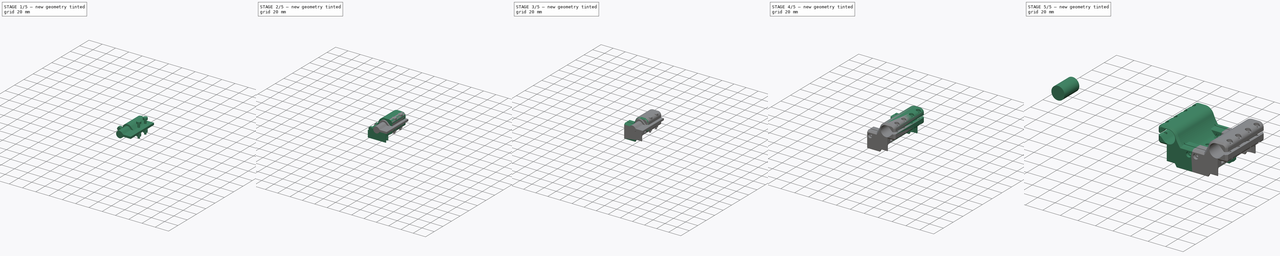
[diagram: build sequence overview — one tinted view per stage of 5, left to right]
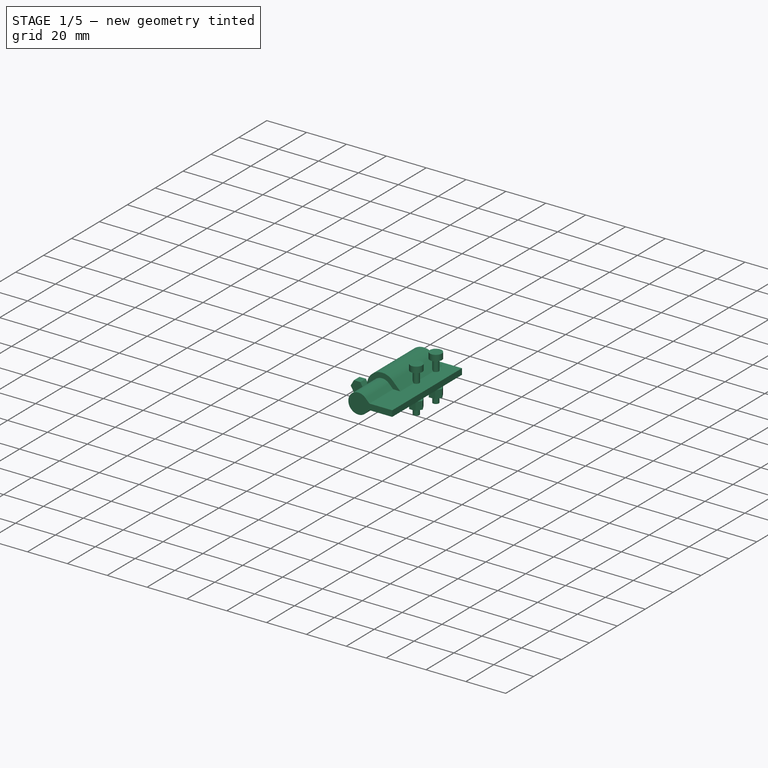
[diagram: stage 1 of 5 — iso view after this stage's code; geometry added in this stage tinted green]
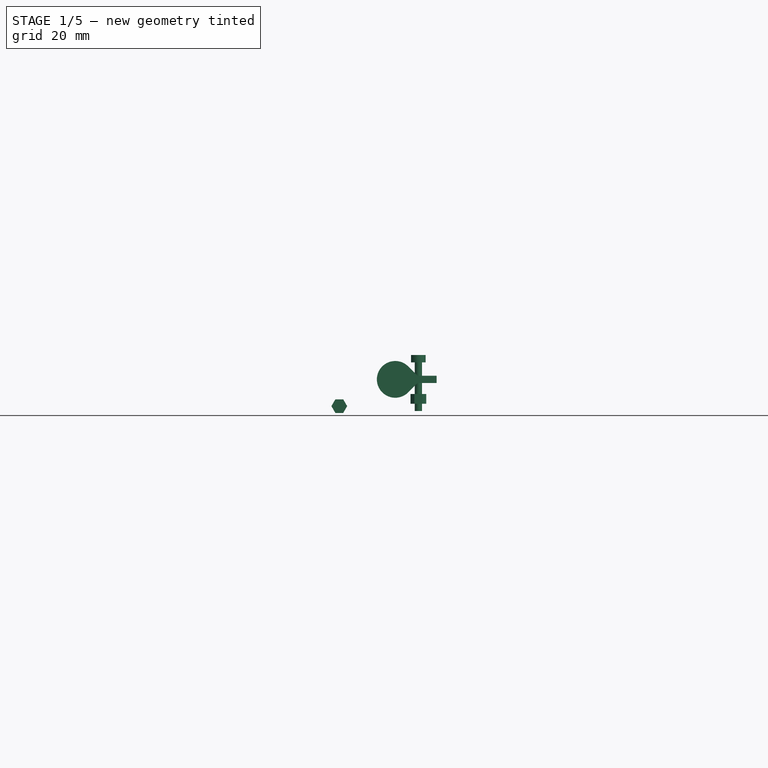
[diagram: stage 1 of 5 — front view after this stage's code; geometry added in this stage tinted green]
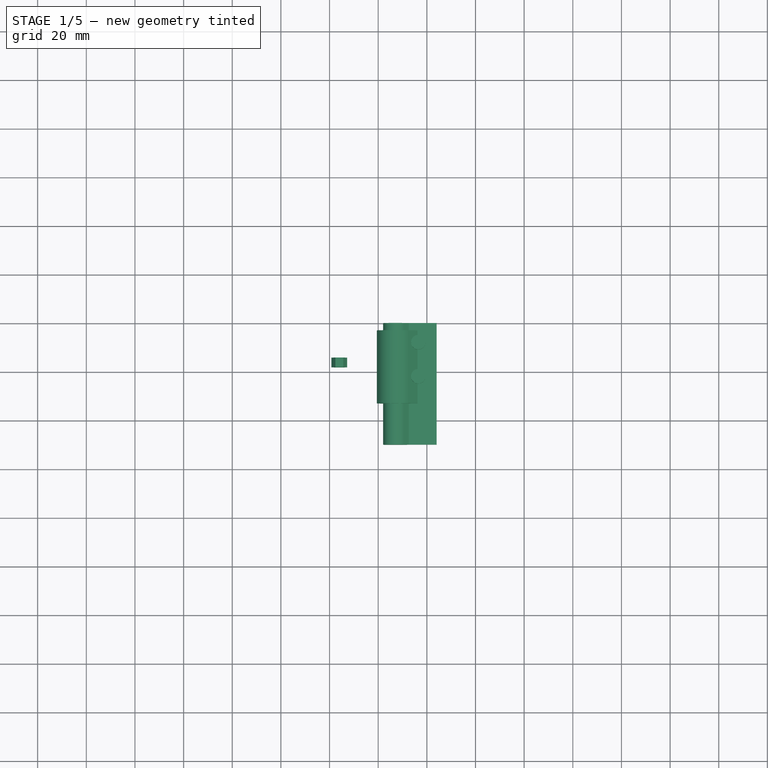
[diagram: stage 1 of 5 — top view after this stage's code; geometry added in this stage tinted green]
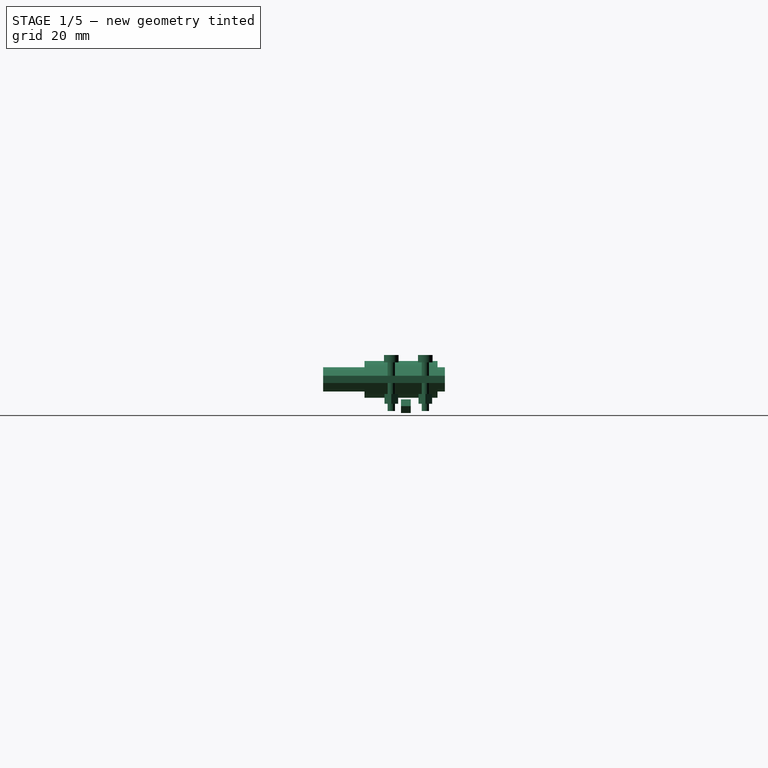
[diagram: stage 1 of 5 — right view after this stage's code; geometry added in this stage tinted green]
FCSTD DOCUMENT  (FreeCAD 0.16RUnknown)
Label: YCarriage
License: All rights reserved
LicenseURL: http://en.wikipedia.org/wiki/All_rights_reserved
objects: Part::Feature×25, Part::FeaturePython×15, Sketcher::SketchObject×14, PartDesign::Pad×8, Part::Cut×7, Part::MultiFuse×6, App::DocumentObjectGroup×5, Part::Mirroring×4, Part::Fillet×4, Part::Chamfer×3, Part::Extrusion×3, Part::Offset×2, PartDesign::Pocket×2, Part::Compound×1, Part::Box×1, PartDesign::Revolution×1, Spreadsheet::Sheet×1
note: 107 computed .brp shape members not serialized (recipe doc carries the construction recipe); baked Part::Feature solids carry a one-line shape summary decoded from their .brp

FEATURE [Sketcher::SketchObject] Sketch022  label="DIN912 M3"
  sketch-geometry (6):
    g0: LineSegment StartX=0 StartY=3 StartZ=0 EndX=3 EndY=3 EndZ=0
    g1: LineSegment StartX=3 StartY=3 StartZ=0 EndX=3 EndY=0 EndZ=0
    g2: LineSegment StartX=3 StartY=0 StartZ=0 EndX=1.5 EndY=0 EndZ=0
    g3: LineSegment StartX=1.5 StartY=0 StartZ=0 EndX=1.5 EndY=-20 EndZ=0
    g4: LineSegment StartX=1.5 StartY=-20 StartZ=0 EndX=0 EndY=-20 EndZ=0
    g5: LineSegment StartX=0 StartY=-20 StartZ=0 EndX=0 EndY=3 EndZ=0
  constraints (18):
    c: Coincident(g0,g1)
    c: Coincident(g1,g2)
    c: Coincident(g2,g3)
    c: Coincident(g3,g4)
    c: Coincident(g4,g5)
    c: Coincident(g5,g0)
    c: Horizontal(g0)
    c: Horizontal(g2)
    c: Horizontal(g4)
    c: Vertical(g5)
    c: Vertical(g3)
    c: Vertical(g1)
    c: PointOnObject(g2,g-1)
    c: PointOnObject(g0,g-2)
    c: DistanceX(g4,g4) = 1.5
    c: DistanceX(g0,g0) = 3
    c: DistanceY(g1,g1) = 3
    c: DistanceY(g3,g3) = 20
FEATURE [PartDesign::Revolution] Revolution  label="DIN912 M3001"
  Angle = 360
  Axis = (0,1,0)
  Base = (0,0,0)
  ReferenceAxis = -> Sketch022 [V_Axis]
  Reversed = true
  Sketch = -> Sketch022
FEATURE [Sketcher::SketchObject] Sketch023  label="M3 Nut"
  expr: Constraints[19] = 5.5 + pars.NutWidthClearmm
  sketch-geometry (7):
    g0: LineSegment StartX=1.61658 StartY=-2.8 StartZ=0 EndX=3.23316 EndY=-2e-12 EndZ=0
    g1: LineSegment StartX=3.23316 StartY=-2e-12 StartZ=0 EndX=1.61658 EndY=2.8 EndZ=0
    g2: LineSegment StartX=1.61658 StartY=2.8 StartZ=0 EndX=-1.61658 EndY=2.8 EndZ=0
    g3: LineSegment StartX=-1.61658 StartY=2.8 StartZ=0 EndX=-3.23316 EndY=-2e-12 EndZ=0
    g4: LineSegment StartX=-3.23316 StartY=-2e-12 StartZ=0 EndX=-1.61658 EndY=-2.8 EndZ=0
    g5: LineSegment StartX=-1.61658 StartY=-2.8 StartZ=0 EndX=1.61658 EndY=-2.8 EndZ=0
    g6: Circle [constr] CenterX=0 CenterY=0 CenterZ=0 NormalX=0 NormalY=0 NormalZ=1 Radius=3.23316
  constraints (16):
    c: Coincident(g0,g1)
    c: Coincident(g1,g2)
    c: Coincident(g2,g3)
    c: Coincident(g3,g4)
    c: Coincident(g4,g5)
    c: Coincident(g5,g0)
    c: Equal(g0, g1-g5) x5
    c: PointOnObject(g0,g6)
    c: PointOnObject(g1,g6)
    c: PointOnObject(g2,g6)
    c: PointOnObject(g3,g6)
    c: PointOnObject(g4,g6)
    c: PointOnObject(g5,g6)
    c: Coincident(g6,g-1)
    c: Horizontal(g5)
    c: DistanceY(g0,g1) = 5.6
FEATURE [PartDesign::Pad] Pad007  label="M3 Nut001"
  Length = 4
  Length2 = 100
  Sketch = -> Sketch023
  Type = 0
  expr: Length = 4
FEATURE [Spreadsheet::Sheet] Spreadsheet  label="pars"
  cells = A1=Bolts and Nuts; B1=Value; D1=Components; E1=Value; A2=Thread Tight Tolerance (Radius, ratio); B2(ThrTighRatio)=0.96; D2=Tight Cilinder Tolerances (Radius, mm); E2(CilTight)=0.1; A3=Thread Tight Tolerance (Radius, mm); B3(ThrTightmm)=0.1; D3=Loose Cilinder Tolerances (Radius, mm); E3(CilLoose)=0.1; A5=Nut Slot Width Clearance (mm); B5(NutWidthClearmm)=0.1; A6=Nut Slot Thickess Clearance (mm); B6(NutThickClearmm)=0.1; A13=Particular parameters; B13=Value; A14=Bearing Adjustment Slits; B14(BearSlits)=3
FEATURE [Part::FeaturePython] Clone022003003008002009024020004  label="Clone of M3 Nut001"  # Draft clone (typed FeaturePython)
  Objects = -> [Pad007]
  Placement = pos=(4,-18,9) rot=(-1,0,0;1.5708rad)
  Scale = (1,1,1)
FEATURE [Sketcher::SketchObject] Sketch024  label="YRodLane001"
  expr: Constraints[15] = pars.BearSlits
  sketch-geometry (6):
    g0: ArcOfCircle CenterX=0 CenterY=0 CenterZ=0 NormalX=0 NormalY=0 NormalZ=1 Radius=5 StartAngle=2.35619 EndAngle=7.06858
    g1: LineSegment StartX=-3.53553 StartY=3.53553 StartZ=0 EndX=-1.5 EndY=5.57107 EndZ=0
    g2: LineSegment StartX=1.5 StartY=5.57107 StartZ=0 EndX=3.53553 EndY=3.53553 EndZ=0
    g3: LineSegment StartX=-1.5 StartY=5.57107 StartZ=0 EndX=-1.5 EndY=17 EndZ=0
    g4: LineSegment StartX=-1.5 StartY=17 StartZ=0 EndX=1.5 EndY=17 EndZ=0
    g5: LineSegment StartX=1.5 StartY=17 StartZ=0 EndX=1.5 EndY=5.57107 EndZ=0
  constraints (17):
    c: Coincident(g2,g0)
    c: Coincident(g1,g0)
    c: Tangent(g2,g0)
    c: Tangent(g1,g0)
    c: Perpendicular(g2,g1)
    c: Coincident(g0,g-1)
    c: Radius(g0) = 5
    c: Coincident(g3,g4)
    c: Coincident(g4,g5)
    c: Coincident(g3,g1)
    c: Coincident(g5,g2)
    c: Vertical(g5)
    c: Vertical(g3)
    c: Horizontal(g4)
    c: Symmetric(g1,g2,g-2)
    c: DistanceX(g4,g4) = 3
    c: DistanceY(g4) = 17
FEATURE [PartDesign::Pad] Pad008  label="YRodLane002"
  Length = 50
  Length2 = 100
  Sketch = -> Sketch024
  Type = 0
FEATURE [Sketcher::SketchObject] Sketch025  label="BearingSlot"
  expr: Constraints[15] = pars.BearSlits
  sketch-geometry (6):
    g0: ArcOfCircle CenterX=0 CenterY=0 CenterZ=0 NormalX=0 NormalY=0 NormalZ=1 Radius=7.55 StartAngle=2.3562 EndAngle=7.06858
    g1: LineSegment StartX=-5.33868 StartY=5.33863 StartZ=0 EndX=-1.5 EndY=9.17731 EndZ=0
    g2: LineSegment StartX=1.5 StartY=9.17731 StartZ=0 EndX=5.33868 EndY=5.33863 EndZ=0
    g3: LineSegment StartX=-1.5 StartY=9.17731 StartZ=0 EndX=-1.5 EndY=17 EndZ=0
    g4: LineSegment StartX=-1.5 StartY=17 StartZ=0 EndX=1.5 EndY=17 EndZ=0
    g5: LineSegment StartX=1.5 StartY=17 StartZ=0 EndX=1.5 EndY=9.17731 EndZ=0
  constraints (17):
    c: Coincident(g2,g0)
    c: Coincident(g1,g0)
    c: Tangent(g2,g0)
    c: Tangent(g1,g0)
    c: Perpendicular(g2,g1)
    c: Coincident(g0,g-1)
    c: Radius(g0) = 7.55
    c: Coincident(g3,g4)
    c: Coincident(g4,g5)
    c: Coincident(g3,g1)
    c: Coincident(g5,g2)
    c: Vertical(g5)
    c: Vertical(g3)
    c: Horizontal(g4)
    c: Symmetric(g1,g2,g-2)
    c: DistanceX(g4,g4) = 3
    c: DistanceY(g4) = 17
FEATURE [Part::Extrusion] Extrude004  label="BearingSlot001"
  Base = -> Sketch025
  Dir = (0,0,30)
  Placement = pos=(0,0,3) rot=(0,0,1;0rad)
  Solid = true
FEATURE [Part::MultiFuse] Fusion002  label="YAxisCavity"
  Shapes = -> [Pad008,Extrude004]
FEATURE [App::DocumentObjectGroup] Group001  label="Components_src"
  Group = -> [Fusion,Extrude001,Part__Mirroring,Revolution,Pad007,Sketch025,Fusion002]
FEATURE [Part::FeaturePython] Clone022003003008002009024020005  label="Clone of YAxisCavity"  # Draft clone (typed FeaturePython)
  Objects = -> [Fusion002]
  Placement = pos=(27,0,20) rot=(0.57735,0.57735,-0.57735;2.0944rad)
  Scale = (1,1,1)
FEATURE [Part::FeaturePython] Clone022003003008002009024020006  label="Clone of DIN912 M3001"  # Draft clone (typed FeaturePython)
  Objects = -> [Revolution]
  Placement = pos=(37,-22,27) rot=(1,0,0;1.5708rad)
  Scale = (1,1,1)
FEATURE [Part::FeaturePython] Clone022003003008002009024020007  label="Clone of M3 Nut002"  # Draft clone (typed FeaturePython)
  Objects = -> [Pad007]
  Placement = pos=(37,-22,10) rot=(0,0,1;0rad)
  Scale = (1,1,1)
FEATURE [Part::MultiFuse] Fusion003  label="BearingFix"
  Placement = pos=(-0.5,0,0) rot=(0,0,1;0rad)
  Shapes = -> [Clone022003003008002009024020006,Clone022003003008002009024020007]
FEATURE [Part::FeaturePython] Array  label="BearingFixes"  # Draft array (typed FeaturePython)
  Angle = 360
  ArrayType = 0
  Axis = (0,0,1)
  Base = -> Fusion003
  Center = (0,0,0)
  Fuse = false
  IntervalAxis = (0,0,0)
  IntervalX = (1,0,0)
  IntervalY = (0,14,0)
  IntervalZ = (0,0,0)
  NumberPolar = 1
  NumberX = 1
  NumberY = 2
  NumberZ = 1
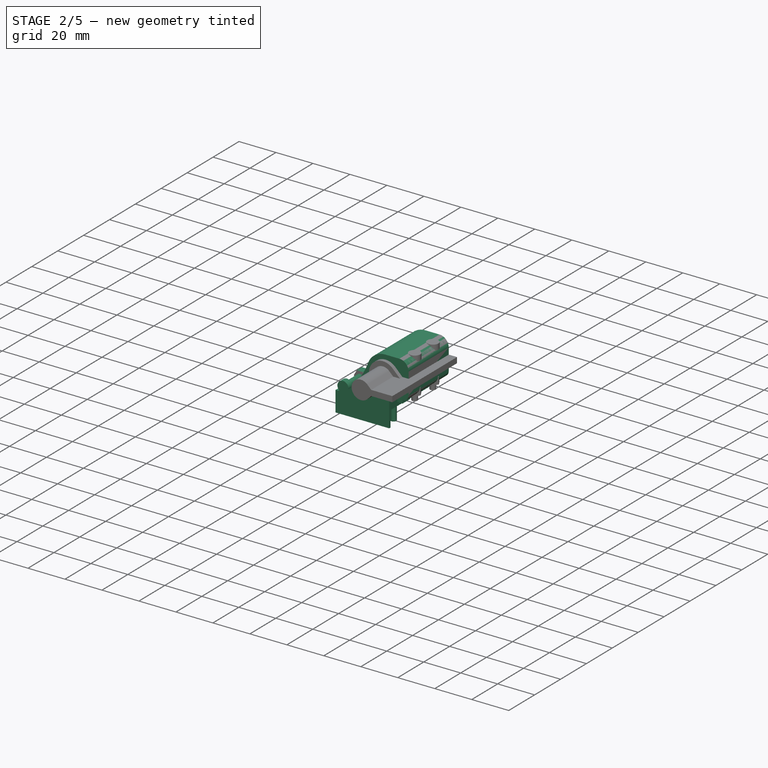
[diagram: stage 2 of 5 — iso view after this stage's code; geometry added in this stage tinted green]
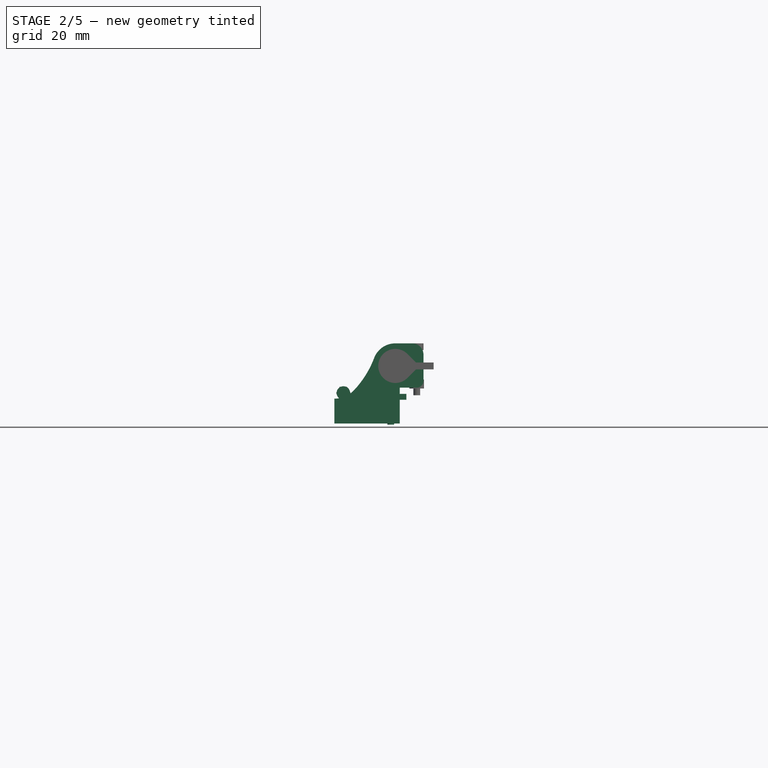
[diagram: stage 2 of 5 — front view after this stage's code; geometry added in this stage tinted green]
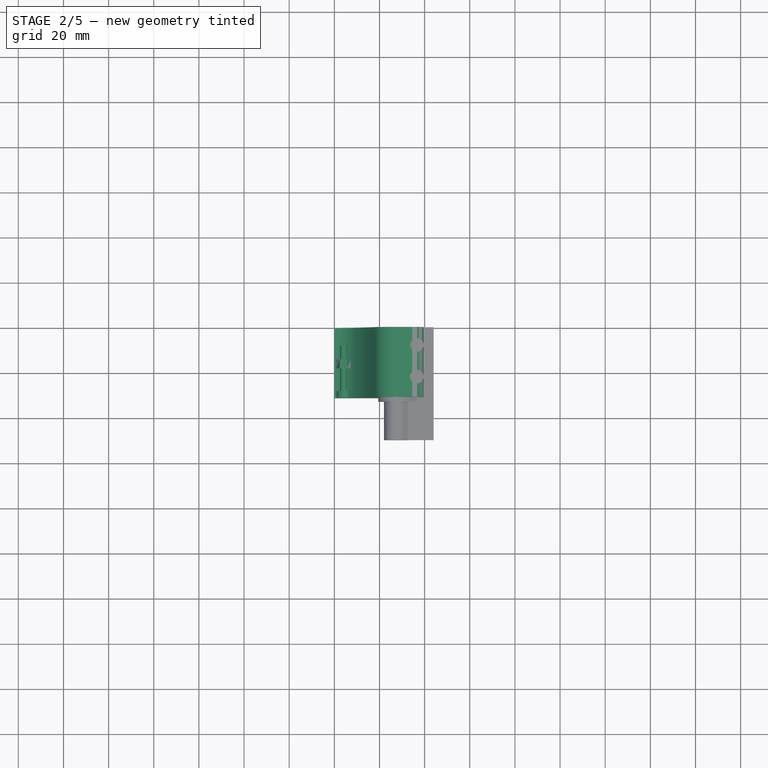
[diagram: stage 2 of 5 — top view after this stage's code; geometry added in this stage tinted green]
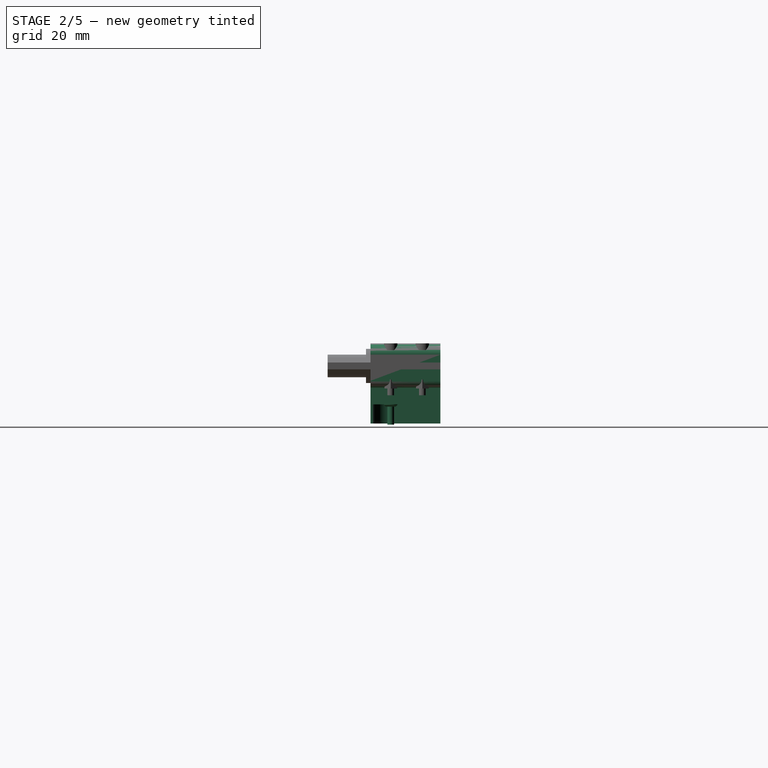
[diagram: stage 2 of 5 — right view after this stage's code; geometry added in this stage tinted green]
FEATURE [Part::Feature] Part__Mirroring002001  label="4018X SNGL (Mirror #3)001"
  Placement = pos=(-70,-29,-10) rot=(0,0,1;0rad)
  shape: bbox 40.13 x 132.8 x 41.15 mm, 30 faces (baked)
FEATURE [Part::Feature] Part__Mirroring009001  label="T slot extrusion 20x20x140.001 (Mirror #2)001"
  Placement = pos=(-70,-29,-10) rot=(0,0,1;0rad)
  shape: bbox 20 x 140 x 20 mm, 51 faces (baked)
FEATURE [Part::Feature] Part__Mirroring004001  label="YBar (Mirror #5)001"
  Placement = pos=(-70,-29,-10) rot=(0,0,1;0rad)
  shape: bbox 8 x 140 x 8 mm, 3 faces (baked)
FEATURE [Part::Feature] Part__Mirroring008001  label="LM8UU001 (Mirror #7)001"
  Placement = pos=(-70,-13,-10) rot=(0,0,1;0rad)
  shape: bbox 15 x 24 x 15 mm, 3 faces (baked)
FEATURE [Part::Feature] Cylinder004001  label="623ZZ001"
  Placement = pos=(-72,1,-10) rot=(0,0,1;0rad)
  shape: bbox 10 x 10 x 4 mm, 3 faces (baked)
FEATURE [Part::Feature] Part__Mirroring007001  label="623ZZ (Mirror #8)001"
  Placement = pos=(-72,1,-10) rot=(0,0,1;0rad)
  shape: bbox 10 x 10 x 4 mm, 3 faces (baked)
FEATURE [Part::Feature] Cylinder002001  label="LM8UU001"
  Placement = pos=(-30,1,-10) rot=(0,0,1;0rad)
  shape: bbox 24 x 15 x 15 mm, 3 faces (baked)
FEATURE [Part::Feature] Part__Mirroring006001  label="LM8UU (Mirror #6)001"
  Placement = pos=(-30,1,-10) rot=(0,0,1;0rad)
  shape: bbox 24 x 15 x 15 mm, 3 faces (baked)
FEATURE [Part::Feature] Cylinder001001  label="XBar001"
  Placement = pos=(-70,1,-10) rot=(0,0,1;0rad)
  shape: bbox 184 x 8 x 8 mm, 3 faces (baked)
FEATURE [Part::Feature] Part__Mirroring003001  label="XBar (Mirror #4)001"
  Placement = pos=(-70,1,-10) rot=(0,0,1;0rad)
  shape: bbox 184 x 8 x 8 mm, 3 faces (baked)
FEATURE [Sketcher::SketchObject] Sketch  label="Base"
  Placement = pos=(0,0,0) rot=(1,0,0;1.5708rad)
  sketch-geometry (12):
    g0: LineSegment StartX=0 StartY=5.5 StartZ=0 EndX=0 EndY=-5.5 EndZ=0
    g1: LineSegment StartX=0 StartY=-5.5 StartZ=0 EndX=29 EndY=-5.5 EndZ=0
    g2: LineSegment StartX=29 StartY=-5.5 StartZ=0 EndX=29 EndY=10.4 EndZ=0
    g3: ArcOfCircle CenterX=27 CenterY=20 CenterZ=0 NormalX=0 NormalY=0 NormalZ=1 Radius=10 StartAngle=1.5708 EndAngle=2.78006
    g4: GeomPoint [constr] X=0 Y=0 Z=0
    g5: ArcOfCircle CenterX=-22.5738 CenterY=38.7468 CenterZ=0 NormalX=0 NormalY=0 NormalZ=1 Radius=43 StartAngle=5.52806 EndAngle=5.92165
    g6: ArcOfCircle CenterX=0 CenterY=17.5 CenterZ=0 NormalX=0 NormalY=0 NormalZ=1 Radius=12 StartAngle=4.71239 EndAngle=5.52806
    g7: LineSegment StartX=27 StartY=30 StartZ=0 EndX=34.5 EndY=30 EndZ=0
    g8: LineSegment StartX=39.5 StartY=25 StartZ=0 EndX=39.5 EndY=13.4 EndZ=0
    g9: LineSegment StartX=36.5 StartY=10.4 StartZ=0 EndX=29 EndY=10.4 EndZ=0
    g10: ArcOfCircle CenterX=34.5 CenterY=25 CenterZ=0 NormalX=0 NormalY=0 NormalZ=1 Radius=5 StartAngle=0 EndAngle=1.5708
    g11: ArcOfCircle CenterX=36.5 CenterY=13.4 CenterZ=0 NormalX=0 NormalY=0 NormalZ=1 Radius=3 StartAngle=4.71239 EndAngle=6.28319
  constraints (35):
    c: Coincident(g0,g1)
    c: Vertical(g0)
    c: Horizontal(g1)
    c: PointOnObject(g0,g-2)
    c: DistanceX(g3) = 27
    c: DistanceY(g3) = 20
    c: Radius(g3) = 10
    c: DistanceY(g0) = -11
    c: Symmetric(g0,g0,g4)
    c: PointOnObject(g4,g-1)
    c: Vertical(g2)
    c: Coincident(g2,g1)
    c: DistanceX(g1) = 29
    c: Coincident(g6,g5)
    c: Coincident(g5,g3)
    c: Tangent(g5,g3)
    c: Tangent(g5,g6)
    c: Coincident(g6,g0)
    c: Perpendicular(g6,g0)
    c: Radius(g6) = 12
    c: Radius(g5) = 43
    c: DistanceY(g2) = 10.4
    c: Coincident(g2,g9)
    c: Horizontal(g9)
    c: Horizontal(g7)
    c: Vertical(g8)
    c: Coincident(g7,g3)
    c: Tangent(g3,g7)
    c: Tangent(g7,g10) = 1.5708
    c: Tangent(g8,g10) = 1.5708
    c: Radius(g10) = 5
    c: DistanceX(g3,g8) = 12.5
    c: Tangent(g9,g11) = 1.5708
    c: Tangent(g8,g11) = 1.5708
    c: Radius(g11) = 3
FEATURE [PartDesign::Pad] Pad  label="Base001"
  Length = 31
  Length2 = 100
  Placement = pos=(0,0,0) rot=(1,0,0;1.5708rad)
  Sketch = -> Sketch
  Type = 0
FEATURE [PartDesign::Pad] Pad002  label="M3BoltThread001"
  Length = 15
  Length2 = 100
  Sketch = -> Sketch004
  Type = 0
FEATURE [Part::Box] Box  label="M3NutSlot"
  Height = 2.6
  Length = 10
  Placement = pos=(-3.1,-2.8,-2.6) rot=(0,0,1;0rad)
  Width = 5.6
FEATURE [Part::Offset] Offset  label="M3Clearance"
  Fill = false
  Intersection = false
  Join = 0
  Mode = 0
  Placement = pos=(0,0,-4) rot=(0,0,1;0rad)
  SelfIntersection = false
  Source = -> Pad002
  Value = 0
FEATURE [Part::Offset] Offset001  label="M3NutClearance"
  Fill = false
  Intersection = false
  Join = 0
  Mode = 0
  Placement = pos=(-3.1,-2.8,-2.6) rot=(0,0,1;0rad)
  SelfIntersection = false
  Source = -> Box
  Value = 0
FEATURE [Part::MultiFuse] Fusion  label="M3NutAndBolt"
  Shapes = -> [Offset001,Offset]
FEATURE [Part::FeaturePython] Clone  label="Clone of M3NutAndBolt"  # Draft clone (typed FeaturePython)
  Objects = -> [Fusion]
  Placement = pos=(25,-22,5) rot=(1,0,0;3.14159rad)
  Scale = (1,1,1)
FEATURE [Sketcher::SketchObject] Sketch002  label="PulleyPocket"
  Placement = pos=(0,0,-5.5) rot=(1,0,0;3.14159rad)
  Support = -> Pad [Face3]
  sketch-geometry (5):
    g0: LineSegment StartX=17 StartY=22 StartZ=0 EndX=17 EndY=-6.649 EndZ=0
    g1: LineSegment StartX=17 StartY=-6.649 StartZ=0 EndX=40.092 EndY=-6.649 EndZ=0
    g2: LineSegment StartX=40.092 StartY=-6.649 StartZ=0 EndX=40.092 EndY=30 EndZ=0
    g3: ArcOfCircle CenterX=25 CenterY=22 CenterZ=0 NormalX=0 NormalY=0 NormalZ=1 Radius=8 StartAngle=1.5708 EndAngle=3.1416
    g4: LineSegment StartX=25 StartY=30 StartZ=0 EndX=40.092 EndY=30 EndZ=0
  constraints (14):
    c: Coincident(g0,g1)
    c: Coincident(g1,g2)
    c: Horizontal(g1)
    c: Vertical(g0)
    c: Vertical(g2)
    c: DistanceX(g3) = 25
    c: DistanceY(g3) = 22
    c: Radius(g3) = 8
    c: Coincident(g0,g3)
    c: Tangent(g3,g0)
    c: Coincident(g4,g2)
    c: Horizontal(g4)
    c: Coincident(g3,g4)
    c: Tangent(g3,g4)
FEATURE [PartDesign::Pocket] Pocket  label="PulleyPocket001"
  Length = 8.5
  Placement = pos=(0,0,0) rot=(1,0,0;1.5708rad)
  Sketch = -> Sketch002
  Type = 0
FEATURE [Sketcher::SketchObject] Sketch003  label="BearingPad"
  Placement = pos=(0,0,3) rot=(1,0,0;3.14159rad)
  Support = -> Pocket [Face9]
  sketch-geometry (1):
    g0: Circle CenterX=25 CenterY=22 CenterZ=0 NormalX=0 NormalY=0 NormalZ=1 Radius=3
  constraints (3):
    c: DistanceX(g0) = 25
    c: DistanceY(g0) = 22
    c: Radius(g0) = 3
FEATURE [PartDesign::Pad] Pad003  label="BearingPad001"
  Length = 1
  Length2 = 100
  Placement = pos=(0,0,0) rot=(1,0,0;1.5708rad)
  Sketch = -> Sketch003
  Type = 0
FEATURE [Part::Chamfer] Chamfer  label="PrintableChamfer"
  Base = -> Pad003
  Edges = 1 edges r=0.8: [Edge48]
FEATURE [Part::FeaturePython] Clone022003003008002009024020003  label="Clone of DIN912 M3x10mm001"  # Draft clone (typed FeaturePython)
  Objects = -> [Revolution]
  Placement = pos=(4,-28,9) rot=(1,0,0;3.14159rad)
  Scale = (1,1,1)
FEATURE [Part::MultiFuse] Fusion001
  Placement = pos=(0,0,-1) rot=(0,0,1;0rad)
  Shapes = -> [Clone022003003008002009024020003,Clone022003003008002009024020004]
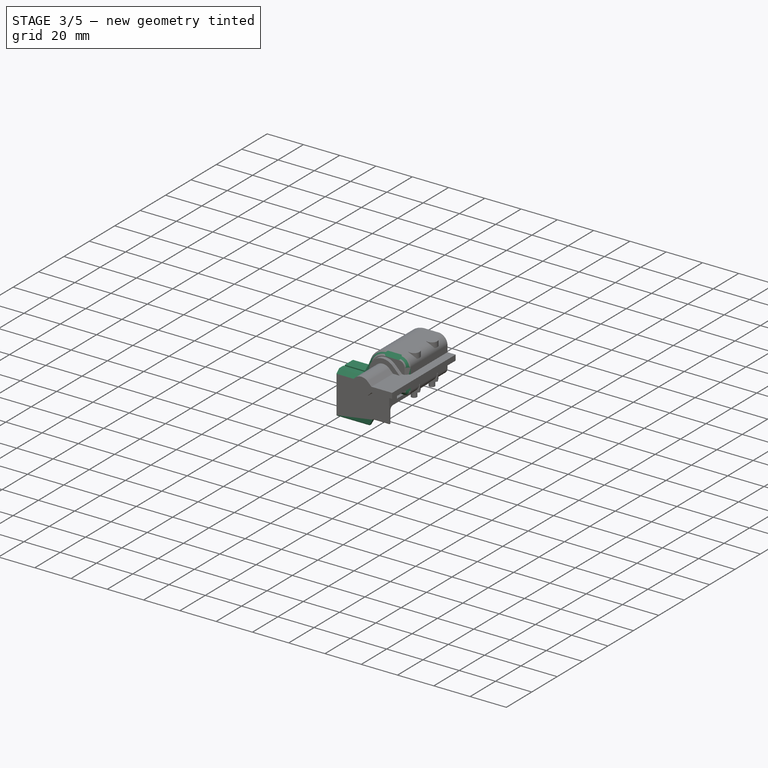
[diagram: stage 3 of 5 — iso view after this stage's code; geometry added in this stage tinted green]
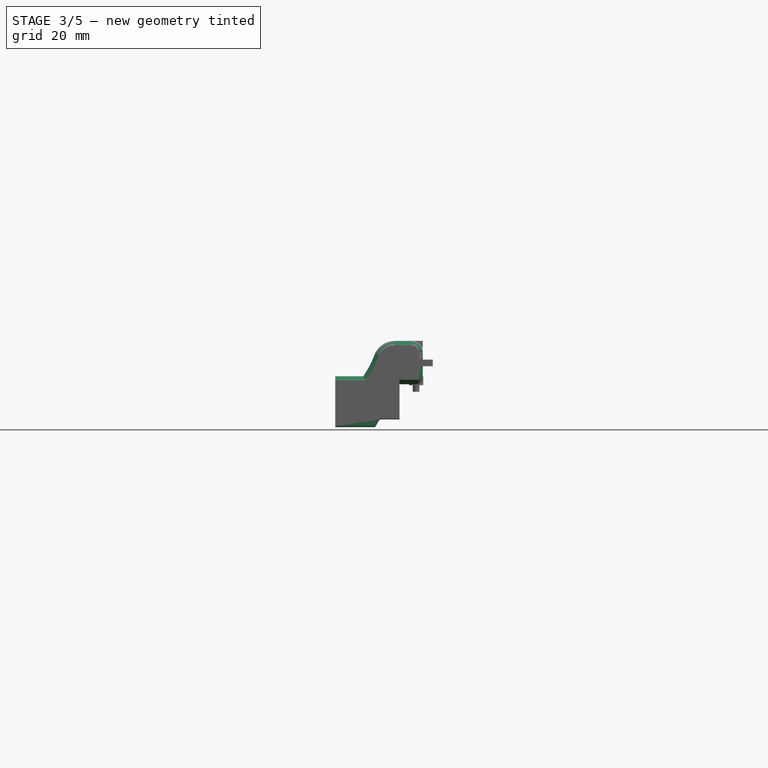
[diagram: stage 3 of 5 — front view after this stage's code; geometry added in this stage tinted green]
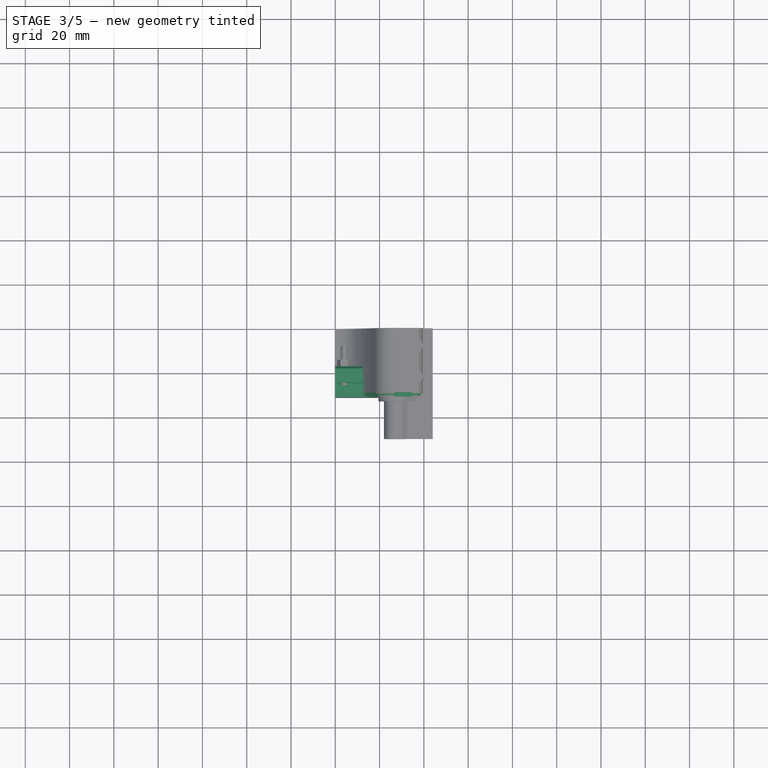
[diagram: stage 3 of 5 — top view after this stage's code; geometry added in this stage tinted green]
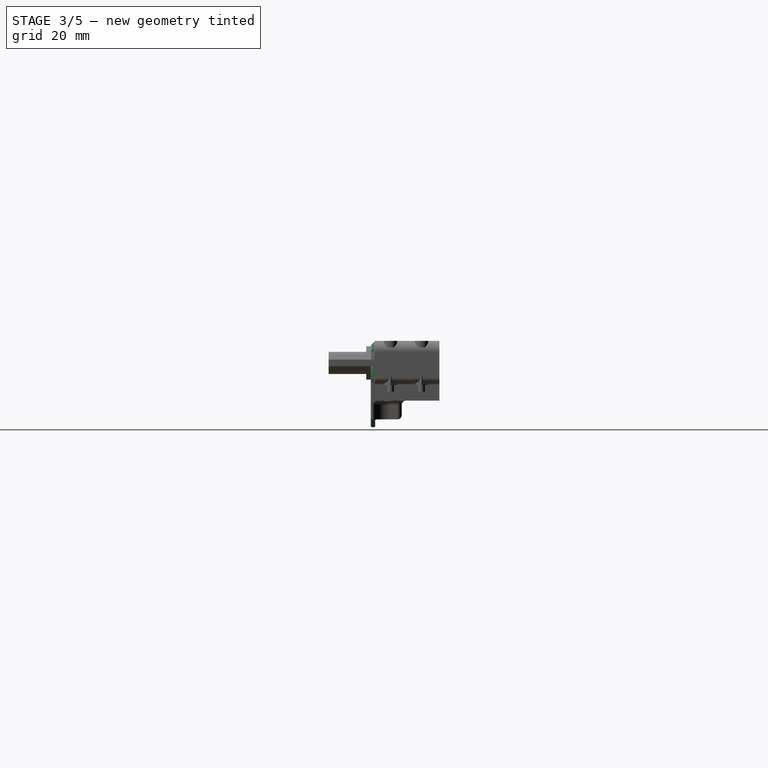
[diagram: stage 3 of 5 — right view after this stage's code; geometry added in this stage tinted green]
FEATURE [Part::Cut] Cut  label="BearingBoltCut"
  Base = -> Chamfer
  Tool = -> Clone
FEATURE [Sketcher::SketchObject] Sketch015  label="SmoothRodCut"
  sketch-geometry (4):
    g0: ArcOfCircle CenterX=0 CenterY=0 CenterZ=0 NormalX=0 NormalY=0 NormalZ=1 Radius=4 StartAngle=1.69612 EndAngle=7.72865
    g1: LineSegment StartX=-0.5 StartY=3.96863 StartZ=0 EndX=-0.5 EndY=14 EndZ=0
    g2: LineSegment StartX=-0.5 StartY=14 StartZ=0 EndX=0.5 EndY=14 EndZ=0
    g3: LineSegment StartX=0.5 StartY=14 StartZ=0 EndX=0.5 EndY=3.96863 EndZ=0
  constraints (12):
    c: Coincident(g1,g2)
    c: Coincident(g2,g3)
    c: Coincident(g1,g0)
    c: Coincident(g0,g3)
    c: Vertical(g3)
    c: Vertical(g1)
    c: Horizontal(g2)
    c: Coincident(g0,g-1)
    c: Radius(g0) = 4
    c: Symmetric(g1,g2,g-2)
    c: DistanceX(g2,g2) = 1
    c: DistanceY(g2) = 14
FEATURE [Part::Extrusion] Extrude001  label="SmRodCut"
  Base = -> Sketch015
  Dir = (0,0,40)
  Solid = true
FEATURE [Part::FeaturePython] Clone007  label="Clone of SmRodCut"  # Draft clone (typed FeaturePython)
  Objects = -> [Extrude001]
  Placement = pos=(16.4,-25,0) rot=(0.57735,-0.57735,-0.57735;2.0944rad)
  Scale = (1,1,1)
FEATURE [Sketcher::SketchObject] Sketch016  label="EndstopHit"
  Placement = pos=(0,-31,0) rot=(1,0,0;1.5708rad)
  Support = -> Cut [Face21]
  sketch-geometry (5):
    g0: LineSegment StartX=0 StartY=-9 StartZ=0 EndX=18 EndY=-9 EndZ=0
    g1: LineSegment StartX=18 StartY=-9 StartZ=0 EndX=20.3094 EndY=-5 EndZ=0
    g2: LineSegment StartX=0 StartY=-5 StartZ=0 EndX=0 EndY=-9 EndZ=0
    g3: LineSegment [constr] StartX=12 StartY=-9 StartZ=0 EndX=12 EndY=-3.13146 EndZ=0
    g4: LineSegment StartX=0 StartY=-5 StartZ=0 EndX=20.3094 EndY=-5 EndZ=0
  constraints (15):
    c: Coincident(g0,g1)
    c: Coincident(g2,g0)
    c: Horizontal(g0)
    c: PointOnObject(g3,g0)
    c: Angle(g1,g2) = 0.523599
    c: DistanceX(g3) = 12
    c: Vertical(g2)
    c: PointOnObject(g2,g-2)
    c: Vertical(g3)
    c: Horizontal(g4)
    c: Coincident(g4,g2)
    c: Coincident(g4,g1)
    c: DistanceY(g0) = -9
    c: DistanceY(g2) = -5
    c: DistanceX(g0) = 18
FEATURE [PartDesign::Pad] Pad004  label="EndstopHit001"
  Length = 2
  Length2 = 100
  Reversed = true
  Sketch = -> Sketch016
  Type = 0
FEATURE [Part::Chamfer] Chamfer004  label="NiceChamfer"
  Base = -> Pad004
  Edges = 7 edges r=0.4: [Edge3,Edge4,Edge5,Edge6,Edge7,Edge8,Edge15]
FEATURE [Part::Feature] Clone022003003008002009024020001  label="UpperPhoneCarriage001"
  Placement = pos=(-70,-108,29) rot=(0,0,1;0rad)
  shape: bbox 186.7 x 134.9 x 30.2 mm, 434 faces (baked)
FEATURE [App::DocumentObjectGroup] Group004  label="References"
  Group = -> [Compound001,Clone022003003008002009024020001,Clone019,Part__Mirroring002001,Part__Mirroring009001,Part__Mirroring004001,Part__Mirroring008001,Cylinder004001,Part__Mirroring007001,Cylinder002001,Part__Mirroring006001,Cylinder001001,Part__Mirroring003001,Part__Mirroring009006001,Part__Mirroring009005001,Part__Mirroring009004001,Part__Mirroring009003001,Part__Mirroring009006002,Clone020]
FEATURE [Sketcher::SketchObject] Sketch021  label="XRodFix"
  Placement = pos=(0,-31,0) rot=(1,0,0;1.5708rad)
  Support = -> Chamfer004 [Face6]
  sketch-geometry (4):
    g0: LineSegment StartX=15 StartY=0 StartZ=0 EndX=0 EndY=0 EndZ=0
    g1: LineSegment StartX=0 StartY=0 StartZ=0 EndX=0 EndY=14 EndZ=0
    g2: LineSegment StartX=0 StartY=14 StartZ=0 EndX=15 EndY=14 EndZ=0
    g3: LineSegment StartX=15 StartY=14 StartZ=0 EndX=15 EndY=0 EndZ=0
  constraints (11):
    c: Coincident(g0,g1)
    c: Coincident(g1,g2)
    c: Coincident(g2,g3)
    c: Coincident(g3,g0)
    c: Horizontal(g0)
    c: Horizontal(g2)
    c: Vertical(g1)
    c: Vertical(g3)
    c: Coincident(g0,g-1)
    c: DistanceY(g1,g1) = 14
    c: DistanceX(g2,g2) = 15
FEATURE [PartDesign::Pad] Pad006  label="XRodFix001"
  Length = 14
  Length2 = 100
  Reversed = true
  Sketch = -> Sketch021
  Type = 0
FEATURE [Part::Chamfer] Chamfer005  label="NiceChamfer001"
  Base = -> Pad006
  Edges = 3 edges: [Edge70 r=2,Edge83 r=1,Edge94 r=2]
FEATURE [Part::Cut] Cut001  label="SmRodCut001"
  Base = -> Chamfer005
  Tool = -> Clone007
FEATURE [Part::Fillet] Fillet  label="AntiCreaseFillet"
  Base = -> Cut001
  Edges = 1 edges r=1: [Edge95]
FEATURE [Sketcher::SketchObject] Sketch011  label="StringLane"
  Placement = pos=(0,0,-5.5) rot=(1,0,0;3.14159rad)
  Support = -> Fillet [Face21]
  sketch-geometry (4):
    g0: LineSegment StartX=0 StartY=0 StartZ=0 EndX=0 EndY=17 EndZ=0
    g1: LineSegment StartX=0 StartY=17 StartZ=0 EndX=18.9085 EndY=17 EndZ=0
    g2: LineSegment StartX=0 StartY=0 StartZ=0 EndX=18.9085 EndY=0 EndZ=0
    g3: LineSegment StartX=18.9085 StartY=0 StartZ=0 EndX=18.9085 EndY=17 EndZ=0
  constraints (10):
    c: Coincident(g0,g1)
    c: Coincident(g2,g3)
    c: Coincident(g1,g3)
    c: Vertical(g3)
    c: Horizontal(g1)
    c: Horizontal(g2)
    c: Vertical(g0)
    c: DistanceY(g0) = 17
    c: Coincident(g0,g2)
    c: Coincident(g0,g-1)
FEATURE [PartDesign::Pocket] Pocket008002  label="StringLane001"
  Length = 8.5
  Sketch = -> Sketch011
  Type = 0
  UpToFace = -> Cut [Face20]
FEATURE [Part::Fillet] Fillet001  label="NiceFillet"
  Base = -> Pocket008002
  Edges = 4 edges r=2: [Edge113,Edge117,Edge118,Edge127]
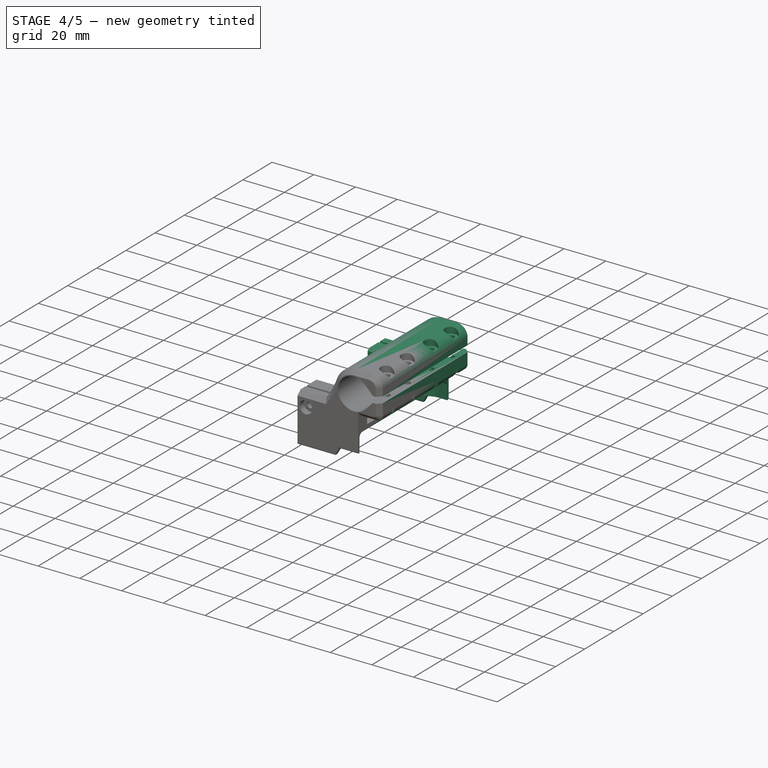
[diagram: stage 4 of 5 — iso view after this stage's code; geometry added in this stage tinted green]
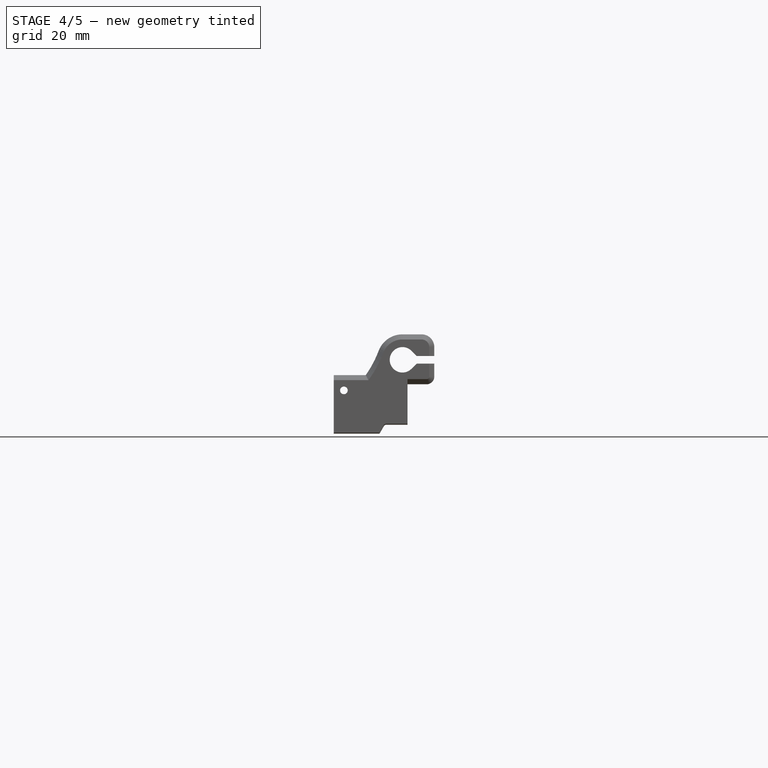
[diagram: stage 4 of 5 — front view after this stage's code; geometry added in this stage tinted green]
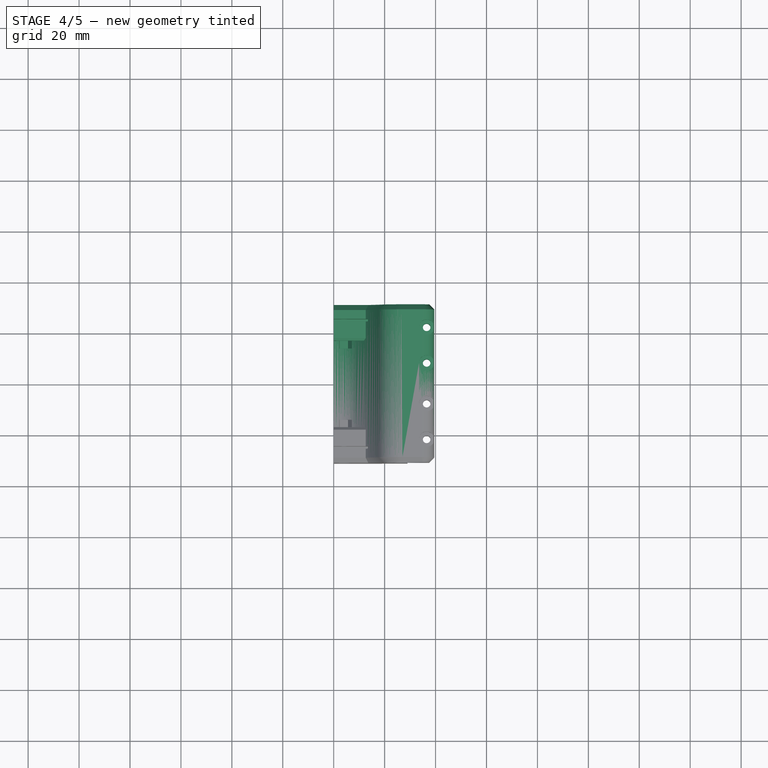
[diagram: stage 4 of 5 — top view after this stage's code; geometry added in this stage tinted green]
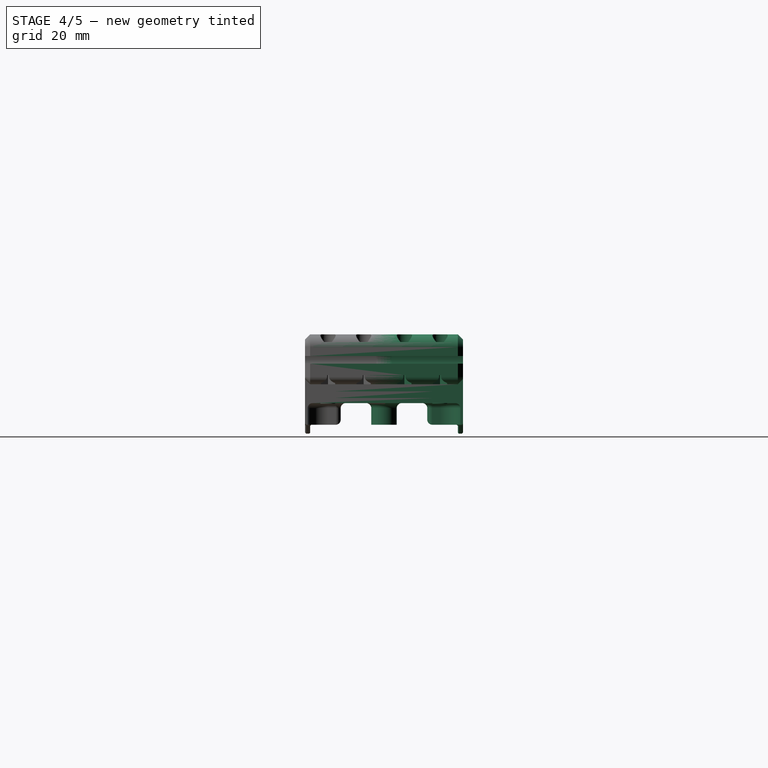
[diagram: stage 4 of 5 — right view after this stage's code; geometry added in this stage tinted green]
FEATURE [Part::FeaturePython] Clone001  label="Clone of M3NutAndBolt001"  # Draft clone (typed FeaturePython)
  Objects = -> [Fusion]
  Placement = pos=(3.5,0,0) rot=(0,1,0;3.14159rad)
  Scale = (1,1,1)
FEATURE [Part::FeaturePython] Clone002  label="Clone of M3NutAndBolt002"  # Draft clone (typed FeaturePython)
  Objects = -> [Fusion]
  Placement = pos=(3.5,-19,-7) rot=(0,0,1;0rad)
  Scale = (1,1,1)
FEATURE [Part::Cut] Cut004  label="XRodFix002"
  Base = -> Fillet001
  Tool = -> Fusion001
FEATURE [Part::Cut] Cut005  label="YAxisCavity001"
  Base = -> Cut004
  Tool = -> Clone022003003008002009024020005
FEATURE [Part::Cut] Cut006  label="BearingFixesCut"
  Base = -> Cut005
  Tool = -> Array
FEATURE [Part::Fillet] Fillet002  label="AntiCreaseFillet001"
  Base = -> Cut006
  Edges = 2 edges r=0.5: [Edge109,Edge113]
FEATURE [PartDesign::Pad] Pad009  label="EndstopPad001"
  Length = 8.5
  Length2 = 100
  Sketch = -> Sketch026
  Type = 0
FEATURE [Part::Fillet] Fillet003  label="NiceFillet001"
  Base = -> Pad009
  Edges = 1 edges r=2: [Edge53]
FEATURE [Part::Cut] Cut002  label="EndstopBoltCut"
  Base = -> Fillet003
  Tool = -> Clone002
FEATURE [Part::Cut] Cut003  label="EndstopBoltCut001"
  Base = -> Cut002
  Tool = -> Clone001
FEATURE [Part::Mirroring] Part__Mirroring009006003  label="EndstopBoltCut001 (Mirror #2)"
  Base = (0,0,0)
  Normal = (0,1,0)
  Source = -> Cut003
FEATURE [Part::MultiFuse] Fusion004  label="RMirroring"
  Shapes = -> [Part__Mirroring009006003,Cut003]
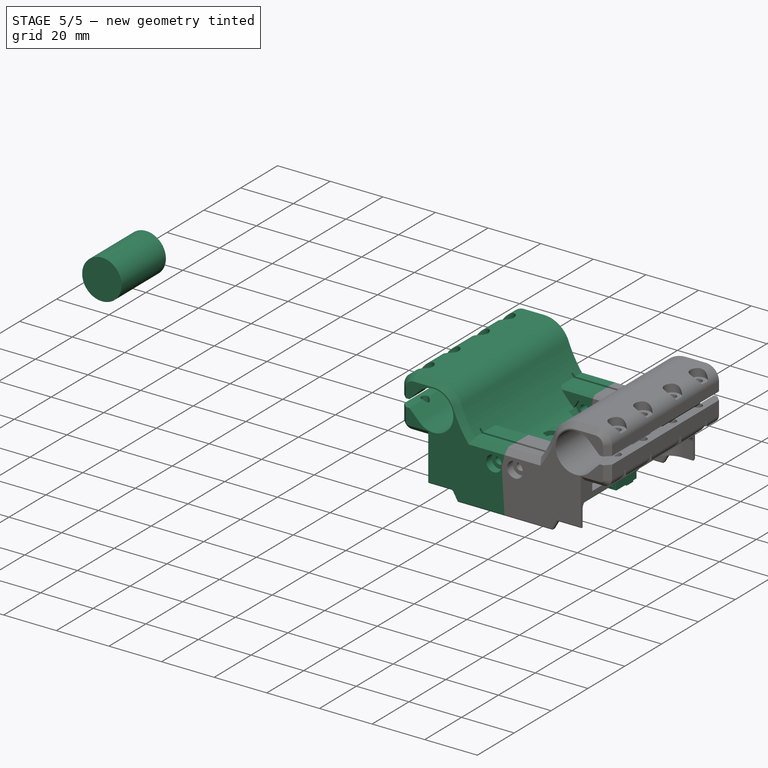
[diagram: stage 5 of 5 — iso view after this stage's code; geometry added in this stage tinted green]
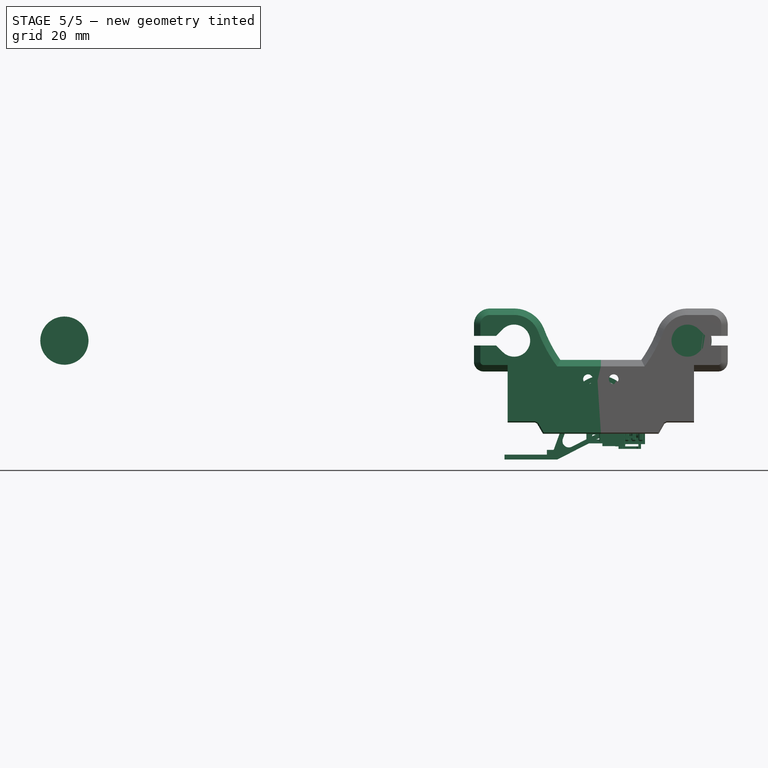
[diagram: stage 5 of 5 — front view after this stage's code; geometry added in this stage tinted green]
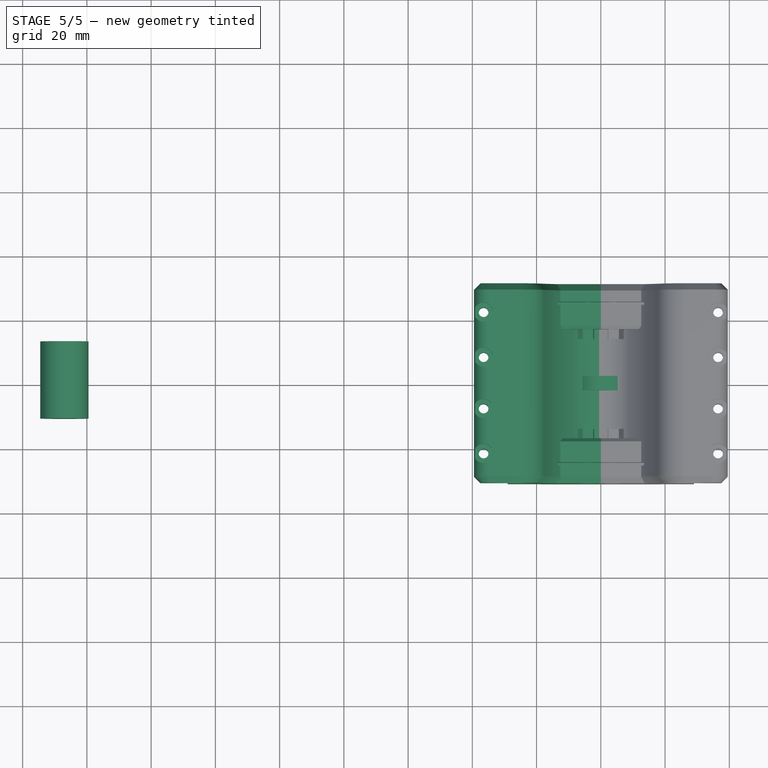
[diagram: stage 5 of 5 — top view after this stage's code; geometry added in this stage tinted green]
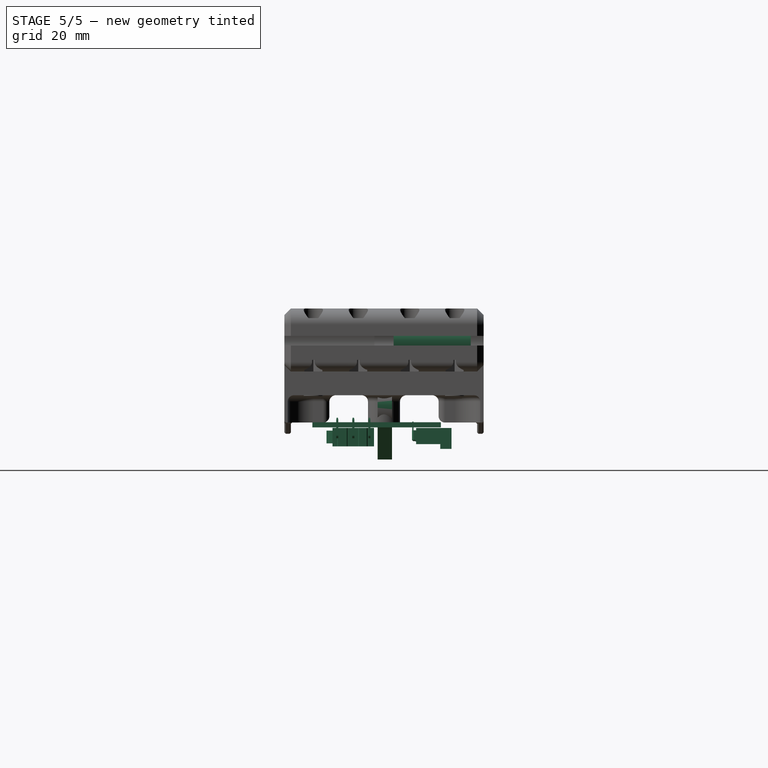
[diagram: stage 5 of 5 — right view after this stage's code; geometry added in this stage tinted green]
FEATURE [Sketcher::SketchObject] Sketch004  label="M3BoltThread"
  sketch-geometry (1):
    g0: Circle CenterX=0 CenterY=0 CenterZ=0 NormalX=0 NormalY=0 NormalZ=1 Radius=1.5
  constraints (2):
    c: Radius(g0) = 1.5
    c: Coincident(g0,g-1)
FEATURE [Part::Feature] Part__Mirroring009006001  label="623ZZ (Mirror #8)001 (Mirror #6)001"
  Placement = pos=(-68,-29,-10) rot=(0,0,1;0rad)
  shape: bbox 10 x 10 x 4 mm, 3 faces (baked)
FEATURE [Part::Feature] Part__Mirroring009005001  label="623ZZ001 (Mirror #5)001"
  Placement = pos=(-68,-29,-10) rot=(0,0,1;0rad)
  shape: bbox 10 x 10 x 4 mm, 3 faces (baked)
FEATURE [Part::Feature] Part__Mirroring009004001  label="YBar (Mirror #5)001 (Mirror #4)001"
  Placement = pos=(-70,-29,-10) rot=(0,0,1;0rad)
  shape: bbox 8 x 140 x 8 mm, 3 faces (baked)
FEATURE [Part::Feature] Part__Mirroring009003001  label="T slot extrusion 20x20x140.001 (Mirror #2)001 (Mirror #3)001"
  Placement = pos=(-70,-29,-10) rot=(0,0,1;0rad)
  shape: bbox 20 x 140 x 20 mm, 51 faces (baked)
FEATURE [Part::Feature] Part__Mirroring009006002  label="4018X SNGL (Mirror #3)001 (Mirror #2)001"
  Placement = pos=(-70,-29,-10) rot=(0,0,1;0rad)
  shape: bbox 40.13 x 132.8 x 41.15 mm, 30 faces (baked)
FEATURE [Part::Feature] Part__Feature  label="Compound002"
  shape: bbox 1.6 x 40 x 16.5 mm, 8 faces (baked)
FEATURE [Part::Feature] Part__Feature001  label="Compound003"
  shape: bbox 2.9 x 1 x 1.2 mm, 8 faces (baked)
FEATURE [Part::Feature] Part__Feature002  label="Compound004"
  shape: bbox 5.75 x 12.9 x 3.155 mm, 39 faces (baked)
FEATURE [Part::Feature] Part__Feature003  label="Compound005"
  shape: bbox 5.7 x 12.9 x 6 mm, 37 faces (baked)
FEATURE [Part::Feature] Part__Feature004  label="Compound006"
  shape: bbox 8.5 x 12.3 x 9.5 mm, 136 faces (baked)
FEATURE [Part::Feature] Part__Feature005  label="Compound007"
  shape: bbox 6.4 x 0.64 x 4.5 mm, 22 faces (baked)
FEATURE [Part::Feature] Part__Feature006  label="Compound008"
  shape: bbox 6.4 x 0.64 x 4.5 mm, 22 faces (baked)
FEATURE [Part::Feature] Part__Feature007  label="Compound009"
  shape: bbox 4 x 13.59 x 6.333 mm, 26 faces (baked)
FEATURE [Part::Feature] Part__Feature008  label="Compound010"
  shape: bbox 6.4 x 0.64 x 4.5 mm, 22 faces (baked)
FEATURE [Part::Compound] Compound001  label="Endstop"
  Links = -> [Part__Feature008,Part__Feature005,Part__Feature006,Part__Feature004,Part__Feature001,Part__Feature,Part__Feature007,Part__Feature003,Part__Feature002]
  Placement = pos=(17,17.7,-7) rot=(0,-1,0;1.5708rad)
FEATURE [Sketcher::SketchObject] Sketch020  label="TieSlot002"
  Placement = pos=(0,0,0) rot=(1,0,0;1.5708rad)
  sketch-geometry (14):
    g0: ArcOfCircle CenterX=0 CenterY=0 CenterZ=0 NormalX=0 NormalY=0 NormalZ=1 Radius=7.5 StartAngle=0.349064 EndAngle=4.24115
    g1: ArcOfCircle CenterX=0 CenterY=0 CenterZ=0 NormalX=0 NormalY=0 NormalZ=1 Radius=9 StartAngle=0.349066 EndAngle=4.24115
    g2: LineSegment StartX=11.8232 StartY=-10.5554 StartZ=0 EndX=7.0477 EndY=2.56514 EndZ=0
    g3: LineSegment StartX=-3.40493 StartY=-6.68255 StartZ=0 EndX=9.03581 EndY=-13.0214 EndZ=0
    g4: LineSegment StartX=13.5402 StartY=-17 StartZ=0 EndX=-4.08591 EndY=-8.01906 EndZ=0
    g5: LineSegment StartX=8.45723 StartY=3.07818 StartZ=0 EndX=14.6732 EndY=-14 EndZ=0
    g6: LineSegment [constr] StartX=7.0477 StartY=2.56514 StartZ=0 EndX=8.45723 EndY=3.07818 EndZ=0
    g7: ArcOfCircle CenterX=9.94379 CenterY=-11.2394 CenterZ=0 NormalX=0 NormalY=0 NormalZ=1 Radius=2 StartAngle=4.24115 EndAngle=6.63225
    g8: LineSegment StartX=16.7769 StartY=-15.5 StartZ=0 EndX=30 EndY=-15.5 EndZ=0
    g9: LineSegment StartX=30 StartY=-15.5 StartZ=0 EndX=30 EndY=-17 EndZ=0
    g10: LineSegment StartX=30 StartY=-17 StartZ=0 EndX=13.5402 EndY=-17 EndZ=0
    g11: LineSegment StartX=14.6732 StartY=-14 StartZ=0 EndX=16.7769 EndY=-14 EndZ=0
    g12: LineSegment StartX=16.7769 StartY=-14 StartZ=0 EndX=16.7769 EndY=-15.5 EndZ=0
    g13: GeomPoint [constr] X=13.0769 Y=-14 Z=0
  constraints (39):
    c: Coincident(g0,g1)
    c: Coincident(g2,g0)
    c: Coincident(g3,g0)
    c: Coincident(g4,g1)
    c: Tangent(g2,g0)
    c: Tangent(g3,g0)
    c: Tangent(g4,g1)
    c: Radius(g0) = 7.5
    c: Coincident(g0,g-1)
    c: Parallel(g3,g4)
    c: Coincident(g5,g1)
    c: Tangent(g5,g1)
    c: Parallel(g5,g2)
    c: Angle(g-1,g5) = 1.91986
    c: Coincident(g6,g0)
    c: Coincident(g6,g1)
    c: Distance(g6) = 1.5
    c: Tangent(g2,g7) = -1.5708
    c: Tangent(g3,g7) = -1.5708
    c: Radius(g7) = 2
    c: Coincident(g8,g9)
    c: Coincident(g9,g10)
    c: Horizontal(g8)
    c: Horizontal(g10)
    c: Vertical(g9)
    c: DistanceY(g9,g9) = 1.5
    c: Angle(g3) = -0.471239
    c: Coincident(g4,g10)
    c: DistanceY(g9) = -17
    c: DistanceY(g9,g5) = 3
    c: Coincident(g11,g12)
    c: Coincident(g12,g8)
    c: Coincident(g11,g5)
    c: Horizontal(g11)
    c: Vertical(g12)
    c: DistanceX(g8) = 30
    c: PointOnObject(g13,g2)
    c: PointOnObject(g13,g11)
    c: DistanceX(g13,g11) = 3.7
FEATURE [Part::Extrusion] Extrude002  label="TieSlot001"
  Base = -> Sketch020
  Dir = (0,4.5,0)
  Placement = pos=(0,-2,0) rot=(0,0,1;0rad)
  Solid = true
FEATURE [Part::Mirroring] Part__Mirroring  label="TieSlot001 (Mirror #4)"
  Base = (0,0,0)
  Normal = (1,0,0)
  Source = -> Extrude002
FEATURE [Part::FeaturePython] Clone019  label="Clone of LM8UU001 (Mirror #7)001"  # Draft clone (typed FeaturePython)
  Objects = -> [Part__Mirroring008001]
  Placement = pos=(-70,15,-10) rot=(0,0,1;0rad)
  Scale = (1,1,1)
FEATURE [Part::FeaturePython] Clone020  label="Clone of LM8UU001 (Mirror #7)002"  # Draft clone (typed FeaturePython)
  Objects = -> [Part__Mirroring008001]
  Placement = pos=(-264,1,-10) rot=(0,0,1;0rad)
  Scale = (1,1,1)
FEATURE [App::DocumentObjectGroup] Group  label="src"
  Group = -> [Pad,Pocket,Pad004,Cut,Chamfer004,Pad006,Cut001,Fillet,Pocket008002,Fillet002]
FEATURE [Sketcher::SketchObject] Sketch026  label="EndstopPad"
  Placement = pos=(0,0,3) rot=(1,0,0;3.14159rad)
  Support = -> Fillet002 [Face19]
  sketch-geometry (4):
    g0: ArcOfCircle CenterX=3.49997 CenterY=0 CenterZ=0 NormalX=0 NormalY=0 NormalZ=1 Radius=5 StartAngle=0 EndAngle=1.57079
    g1: LineSegment StartX=3.5 StartY=5 StartZ=0 EndX=0 EndY=5 EndZ=0
    g2: LineSegment StartX=0 StartY=5 StartZ=0 EndX=0 EndY=0 EndZ=0
    g3: LineSegment StartX=0 StartY=0 StartZ=0 EndX=8.49997 EndY=0 EndZ=0
  constraints (12):
    c: Coincident(g1,g2)
    c: Coincident(g2,g3)
    c: Coincident(g3,g0)
    c: Coincident(g1,g0)
    c: PointOnObject(g0,g3)
    c: Tangent(g1,g0)
    c: Horizontal(g1)
    c: Horizontal(g3)
    c: Vertical(g2)
    c: Coincident(g2,g-1)
    c: DistanceX(g1,g1) = 3.5
    c: Radius(g0) = 5
FEATURE [Part::FeaturePython] Clone022003003008002009024020010  label="Clone of AntiCreaseFillet001"  # Draft clone (typed FeaturePython)
  Objects = -> [Fillet002]
  Scale = (1,1,1)
FEATURE [App::DocumentObjectGroup] Group006  label="R_src"
  Group = -> [Pad009,Fusion004]
FEATURE [Part::Mirroring] Part__Mirroring009006004  label="Clone of AntiCreaseFillet001 (Mirror #3)"
  Base = (0,0,0)
  Normal = (1,0,0)
  Source = -> Clone022003003008002009024020010
FEATURE [Part::Mirroring] Part__Mirroring009006005  label="Clone of AntiCreaseFillet001 (Mirror #4)"
  Base = (0,0,0)
  Normal = (0,1,0)
  Source = -> Part__Mirroring009006004
FEATURE [Part::MultiFuse] Fusion005  label="LMirroring"
  Shapes = -> [Part__Mirroring009006005,Part__Mirroring009006004]
FEATURE [App::DocumentObjectGroup] Group005  label="L_src"
  Group = -> [Clone022003003008002009024020010,Fusion005]
FEATURE [Part::FeaturePython] Clone022003003008002009024020011  label="LYCarriage"  # Draft clone (typed FeaturePython)
  Objects = -> [Fusion005]
  Scale = (1,1,1)
FEATURE [Part::FeaturePython] Clone022003003008002009024020012  label="RYCarriage"  # Draft clone (typed FeaturePython)
  Objects = -> [Fusion004]
  Scale = (1,1,1)
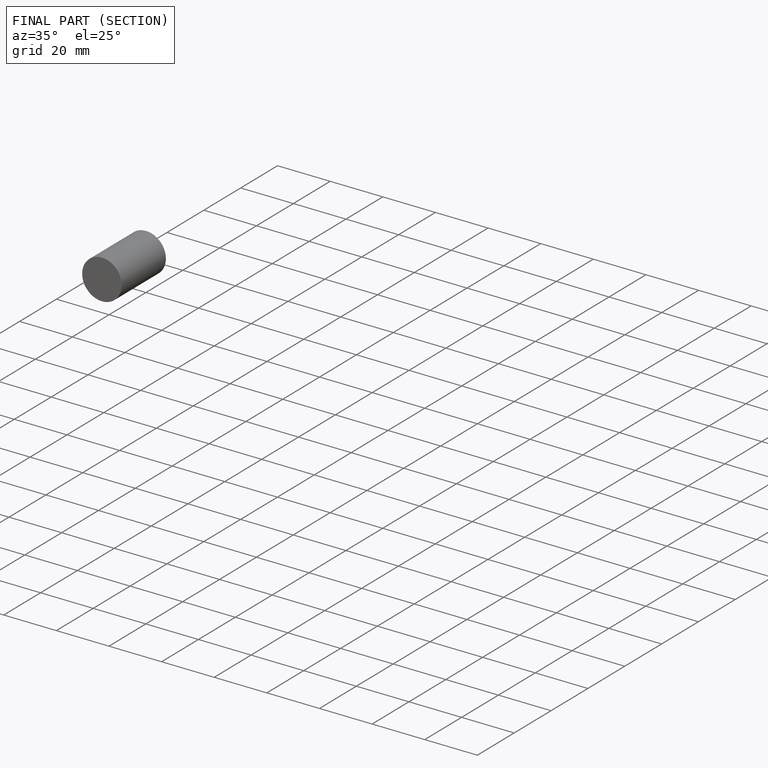
[diagram: finished part — half-section view (interior)]
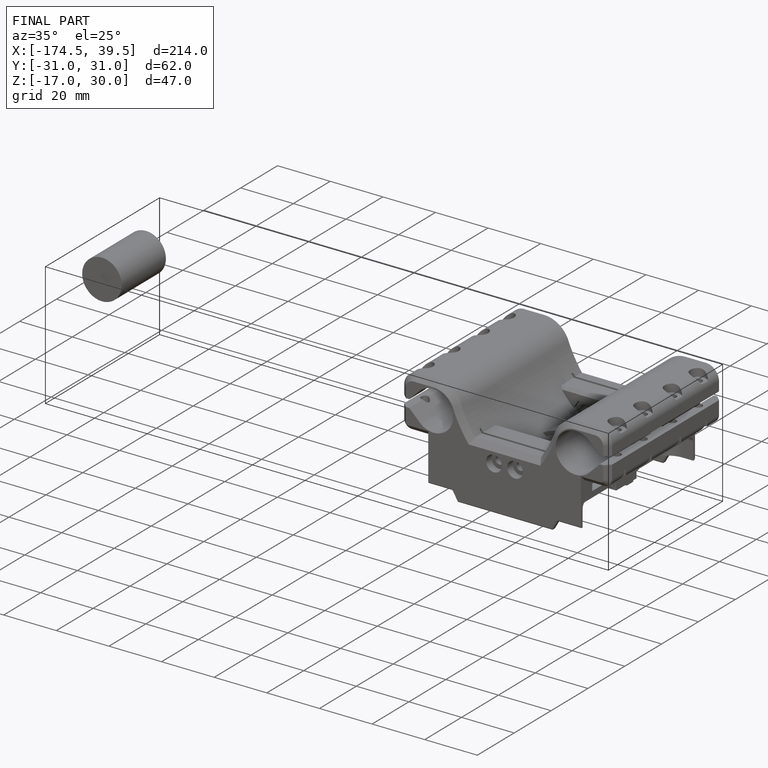
[diagram: finished part — iso view with bounding-box wireframe]
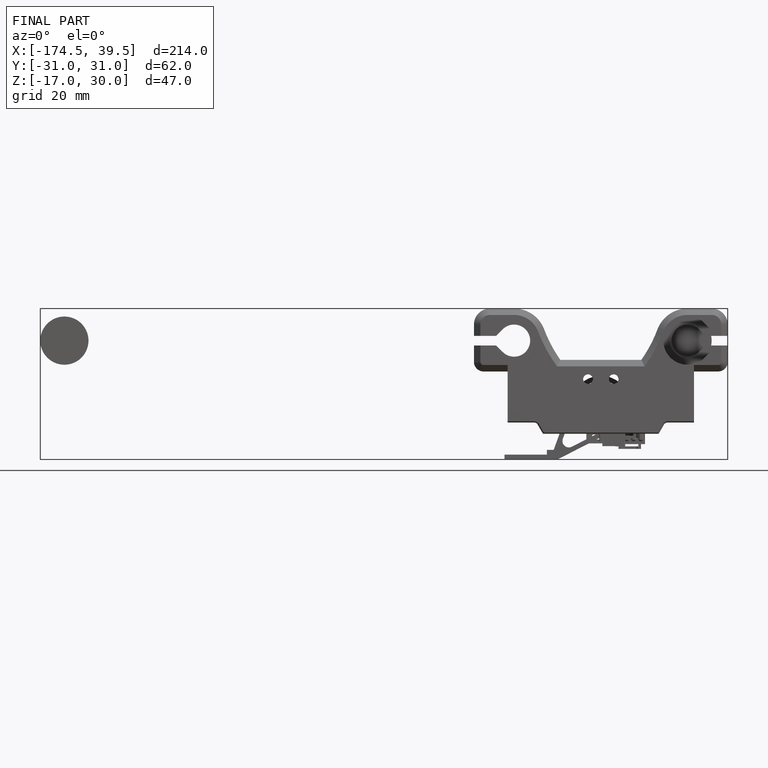
[diagram: finished part — front view with bounding-box wireframe]
